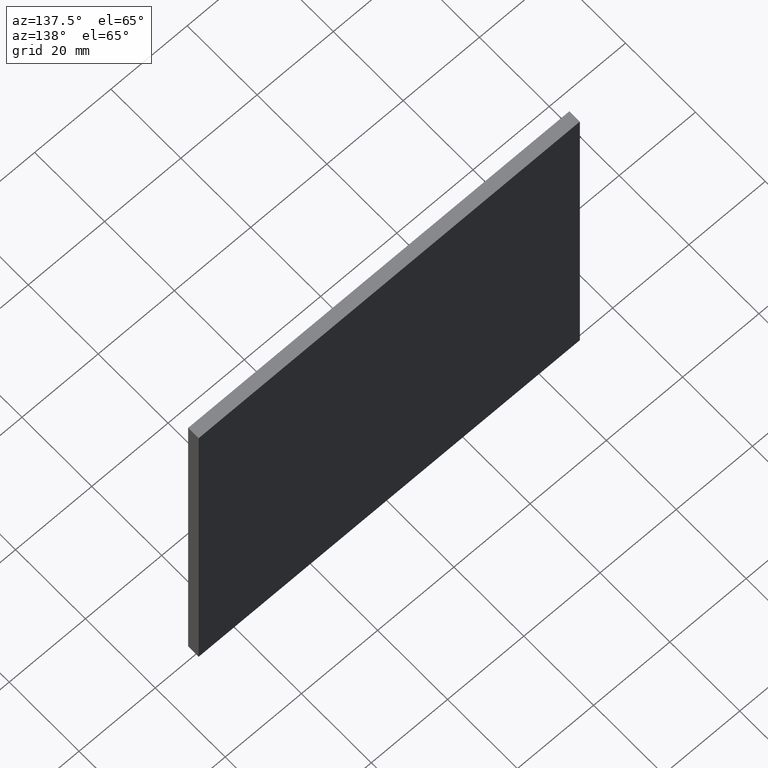
[diagram: clean part render]
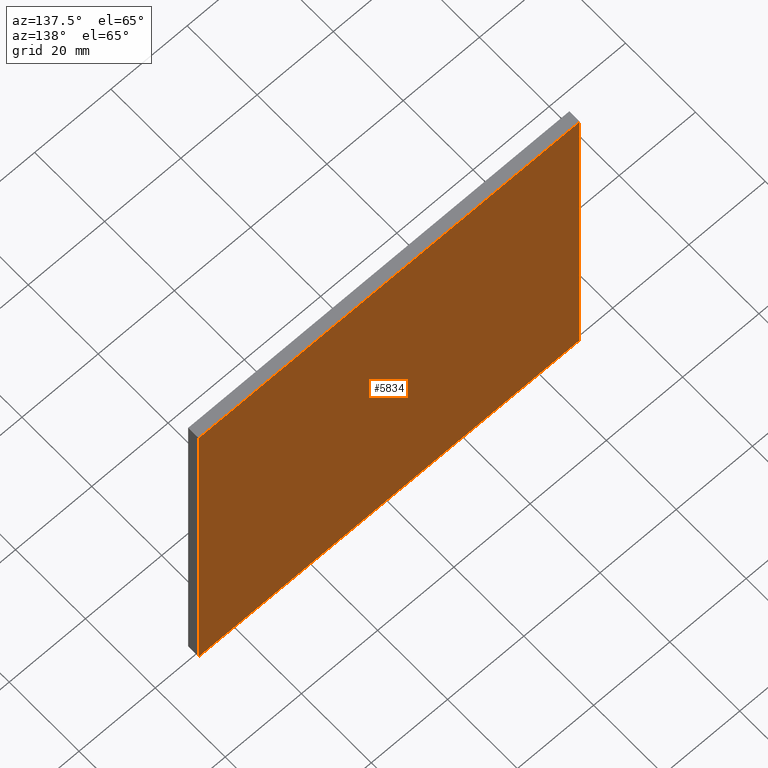
[diagram: same view with one face highlighted and labeled with its STEP entity id]
A machine part, auxiliary view. The second image highlights one B-rep face of the part: STEP entity #5834.
In plain terms, the highlighted planar face has unit normal (0, 1, 0).
Its self-contained STEP definition (entity closure, byte-faithful):
#373 = CARTESIAN_POINT ( 'NONE',  ( -50.00000000000002132, 1.500000000000000000, -50.00000000000000711 ) ) ;
#496 = CARTESIAN_POINT ( 'NONE',  ( -50.00000000000000711, 1.500000000000000000, 49.99999999999999289 ) ) ;
#1304 = LINE ( 'NONE', #14651, #14890 ) ;
#2263 = CARTESIAN_POINT ( 'NONE',  ( -50.00000000000000711, 1.500000000000000000, 49.99999999999999289 ) ) ;
#2302 = DIRECTION ( 'NONE',  ( 0.000000000000000000, 1.000000000000000000, 0.000000000000000000 ) ) ;
#3168 = CARTESIAN_POINT ( 'NONE',  ( 49.99999999999997158, 1.500000000000000000, -50.00000000000000711 ) ) ;
#3384 = VERTEX_POINT ( 'NONE', #11429 ) ;
#3982 = DIRECTION ( 'NONE',  ( 1.387778780781445676E-16, 0.000000000000000000, 1.000000000000000000 ) ) ;
#4367 = VERTEX_POINT ( 'NONE', #14652 ) ;
#5834 = ADVANCED_FACE ( 'NONE', ( #10217 ), #6269, .T. ) ;
#6269 = PLANE ( 'NONE',  #13296 ) ;
#6992 = DIRECTION ( 'NONE',  ( -1.000000000000000000, -0.000000000000000000, -0.000000000000000000 ) ) ;
#7197 = LINE ( 'NONE', #373, #13617 ) ;
#7421 = EDGE_CURVE ( 'NONE', #14120, #9318, #7197, .T. ) ;
#7959 = EDGE_CURVE ( 'NONE', #3384, #4367, #14197, .T. ) ;
#8825 = CARTESIAN_POINT ( 'NONE',  ( 0.000000000000000000, 1.500000000000000000, 0.000000000000000000 ) ) ;
#9111 = ORIENTED_EDGE ( 'NONE', *, *, #15958, .T. ) ;
#9318 = VERTEX_POINT ( 'NONE', #496 ) ;
#9591 = VECTOR ( 'NONE', #15935, 1000.000000000000000 ) ;
#10116 = LINE ( 'NONE', #2263, #10311 ) ;
#10217 = FACE_OUTER_BOUND ( 'NONE', #11950, .T. ) ;
#10311 = VECTOR ( 'NONE', #14861, 1000.000000000000000 ) ;
#11359 = DIRECTION ( 'NONE',  ( 0.000000000000000000, -0.000000000000000000, 1.000000000000000000 ) ) ;
#11429 = CARTESIAN_POINT ( 'NONE',  ( 49.99999999999999289, 1.500000000000000000, 49.99999999999999289 ) ) ;
#11711 = ORIENTED_EDGE ( 'NONE', *, *, #13803, .T. ) ;
#11950 = EDGE_LOOP ( 'NONE', ( #15737, #9111, #16132, #11711 ) ) ;
#13296 = AXIS2_PLACEMENT_3D ( 'NONE', #8825, #2302, #11359 ) ;
#13617 = VECTOR ( 'NONE', #3982, 1000.000000000000000 ) ;
#13803 = EDGE_CURVE ( 'NONE', #9318, #3384, #10116, .T. ) ;
#14120 = VERTEX_POINT ( 'NONE', #15035 ) ;
#14197 = LINE ( 'NONE', #3168, #9591 ) ;
#14651 = CARTESIAN_POINT ( 'NONE',  ( -50.00000000000002132, 1.500000000000000000, -50.00000000000000711 ) ) ;
#14652 = CARTESIAN_POINT ( 'NONE',  ( 49.99999999999997158, 1.500000000000000000, -50.00000000000000711 ) ) ;
#14861 = DIRECTION ( 'NONE',  ( 1.000000000000000000, 0.000000000000000000, 0.000000000000000000 ) ) ;
#14890 = VECTOR ( 'NONE', #6992, 1000.000000000000000 ) ;
#15035 = CARTESIAN_POINT ( 'NONE',  ( -50.00000000000002132, 1.500000000000000000, -50.00000000000000711 ) ) ;
#15737 = ORIENTED_EDGE ( 'NONE', *, *, #7959, .T. ) ;
#15935 = DIRECTION ( 'NONE',  ( -2.081668171172168513E-16, -0.000000000000000000, -1.000000000000000000 ) ) ;
#15958 = EDGE_CURVE ( 'NONE', #4367, #14120, #1304, .T. ) ;
#16132 = ORIENTED_EDGE ( 'NONE', *, *, #7421, .T. ) ;